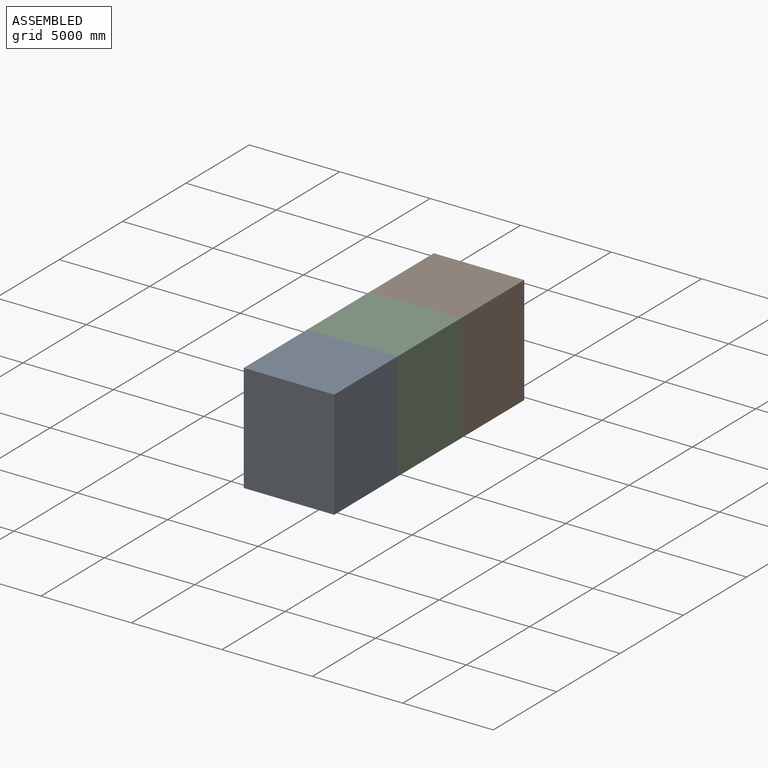
[diagram: assembled view]
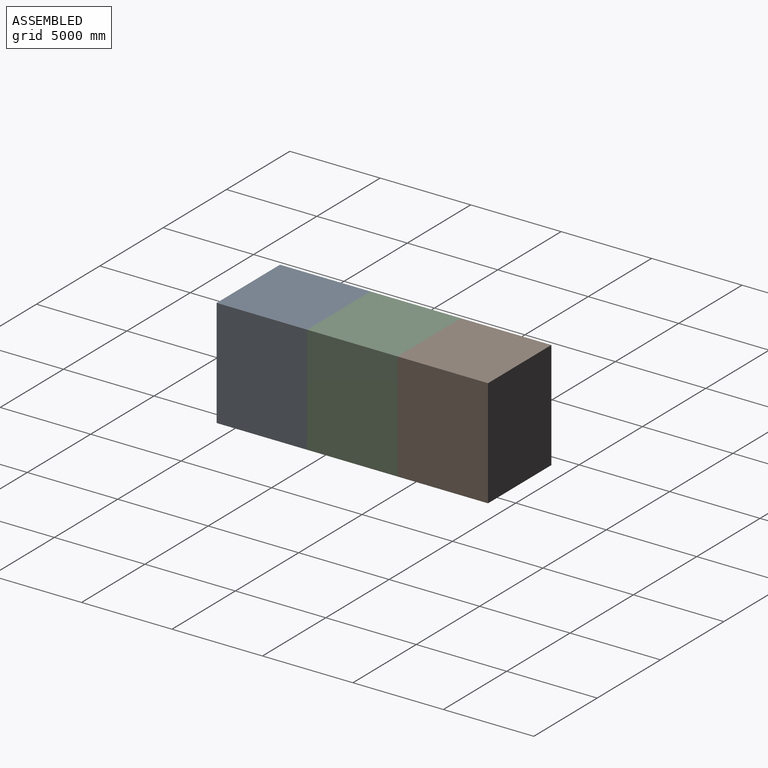
[diagram: assembled view, second angle]
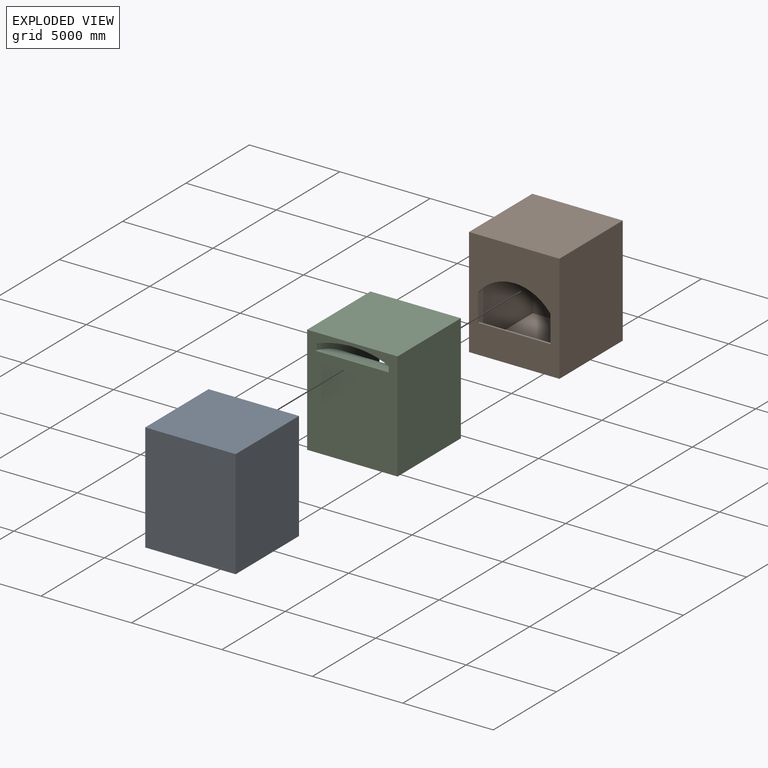
[diagram: exploded view]
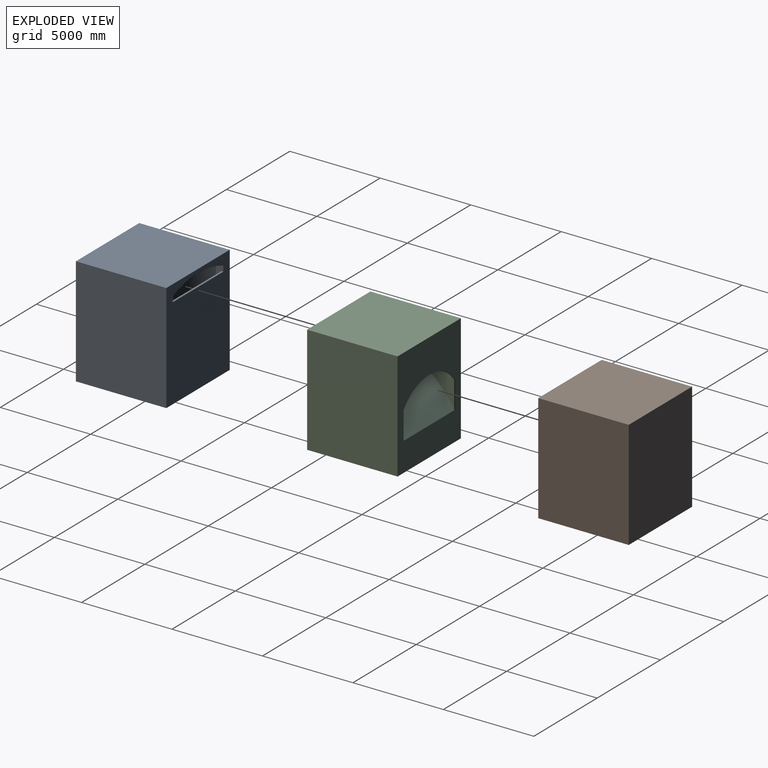
[diagram: exploded view, second angle]
ASSEMBLY  parts=3 mates=2
PART A: 16 faces, bbox 5000x5000x6000 mm
  f0: plane 5000x5000mm, normal (0,0,-1), area 25000000mm2, adj f1,f3,f4,f5
  f1: plane 6000x5000mm, normal (0,1,0), area 30000000mm2, adj f0,f2,f4,f5
  f2: plane 5000x5000mm, normal (0,0,1), area 25000000mm2, adj f1,f3,f4,f5
  f3: plane 6000x5000mm, normal (0,-1,0), area 30000000mm2, adj f0,f2,f4,f5
  f4: plane 6000x5000mm, normal (1,0,0), area 30000000mm2, adj f0,f1,f2,f3
  f5: plane 6000x5000mm, normal (-1,0,0), area 27724848.1mm2, adj f0,f1,f2,f3,f6,f7,f8,f9
  f6: plane 4000x100mm, normal (0,0,1), area 400000mm2, adj f5,f7,f9,f10
  f7: plane 300x100mm, normal (0,-1,0), area 30000mm2, adj f5,f6,f8,f10
  f8: cylinder r=5200mm len=4000mm, axis (-1,0,0), area 410582.8mm2, adj f5,f7,f9,f10
  f9: plane 300x100mm, normal (0,1,0), area 30000mm2, adj f5,f6,f8,f10
  f10: plane 5800x4800mm, normal (1,0,0), area 25564848.1mm2, adj f6,f7,f8,f9,f11,f12,f13,f14
  f11: plane 4800x4800mm, normal (0,0,1), area 23040000mm2, adj f10,f12,f14,f15
  f12: plane 5800x4800mm, normal (0,-1,0), area 27840000mm2, adj f10,f11,f13,f15
  f13: plane 4800x4800mm, normal (0,0,-1), area 23040000mm2, adj f10,f12,f14,f15
  f14: plane 5800x4800mm, normal (0,1,0), area 27840000mm2, adj f10,f11,f13,f15
  f15: plane 5800x4800mm, normal (-1,0,0), area 27840000mm2, adj f11,f12,f13,f14
PART B: 16 faces, bbox 5000x5000x6000 mm
  f0: plane 6000x5000mm, normal (0,1,0), area 21204404.9mm2, adj f1,f2,f3,f4,f6,f7,f8,f9
  f1: plane 5000x5000mm, normal (0,0,-1), area 25000000mm2, adj f0,f2,f4,f5
  f2: plane 6000x5000mm, normal (1,0,0), area 30000000mm2, adj f0,f1,f3,f5
  f3: plane 5000x5000mm, normal (0,0,1), area 25000000mm2, adj f0,f2,f4,f5
  f4: plane 6000x5000mm, normal (-1,0,0), area 30000000mm2, adj f0,f1,f3,f5
  f5: plane 6000x5000mm, normal (0,-1,0), area 30000000mm2, adj f1,f2,f3,f4
  f6: plane 1500x100mm, normal (1,0,0), area 150000mm2, adj f0,f7,f9,f10
  f7: plane 4000x100mm, normal (0,0,1), area 400000mm2, adj f0,f6,f8,f10
  f8: plane 1500x100mm, normal (-1,0,0), area 150000mm2, adj f0,f7,f9,f10
  f9: cylinder r=2500mm len=4000mm, axis (0,1,0), area 463647.6mm2, adj f0,f6,f8,f10
  f10: plane 5800x4800mm, normal (0,-1,0), area 19044404.9mm2, adj f6,f7,f8,f9,f11,f12,f13,f14
  f11: plane 4800x4800mm, normal (0,0,1), area 23040000mm2, adj f10,f12,f14,f15
  f12: plane 5800x4800mm, normal (-1,0,0), area 27840000mm2, adj f10,f11,f13,f15
  f13: plane 4800x4800mm, normal (0,0,-1), area 23040000mm2, adj f10,f12,f14,f15
  f14: plane 5800x4800mm, normal (1,0,0), area 27840000mm2, adj f10,f11,f13,f15
  f15: plane 5800x4800mm, normal (0,1,0), area 27840000mm2, adj f11,f12,f13,f14
PART C: 30 faces, bbox 5000x5138.5x6000 mm
  f0: plane 6000x5000mm, normal (0,-1,0), area 27484108mm2, adj f2,f3,f4,f5,f15,f20,f21,f24
  f1: plane 6000x5000mm, normal (0,1,0), area 20894415.5mm2, adj f2,f3,f4,f5,f10,f11,f12,f13
  f2: plane 6000x5000mm, normal (-1,0,0), area 30000000mm2, adj f0,f1,f4,f5
  f3: plane 6000x5000mm, normal (1,0,0), area 30000000mm2, adj f0,f1,f4,f5
  f4: plane 5000x5000mm, normal (0,0,1), area 25000000mm2, adj f0,f1,f2,f3
  f5: plane 5000x5000mm, normal (0,0,-1), area 25000000mm2, adj f0,f1,f2,f3
  f6: plane 4950.28x3702.44mm, normal (1,0,0), area 3434740.9mm2, adj f13,f14,f23,f24
  f7: bspline ~5000x4000mm, area 22455269.8mm2, adj f18,f23,f26,f29
  f8: plane 4950.28x3702.44mm, normal (-1,0,0), area 3434740.9mm2, adj f16,f17,f25,f26
  f9: bspline ~5000x4000mm, area 24486633.4mm2, adj f10,f14,f15,f16
  f10: cylinder r=25mm len=3950mm, axis (-1,0,0), area 62135.8mm2, adj f1,f9,f11,f12
  f11: bspline ~89.5x52.83mm, area 2451.7mm2, adj f1,f10,f13,f14
  f12: bspline ~87.35x54.1mm, area 2451.8mm2, adj f1,f10,f16,f17
  f13: cylinder r=25mm len=1430.73mm, axis (0,0,-1), area 56184.6mm2, adj f1,f6,f11,f19
  f14: bspline ~5054.12x3568.22mm, area 242612.9mm2, adj f6,f9,f11,f20
  f15: cylinder r=25mm len=3950mm, axis (-1,0,0), area 182897.4mm2, adj f0,f9,f20,f21
  f16: bspline ~5054.12x3568.22mm, area 242612.9mm2, adj f8,f9,f12,f21
  f17: cylinder r=25mm len=1430.73mm, axis (0,0,-1), area 56184.6mm2, adj f1,f8,f12,f22
  f18: bspline ~4030.15x1023.14mm, area 242077.4mm2, adj f1,f7,f19,f22
  f19: bspline ~58.86x49.49mm, area 1709.2mm2, adj f1,f13,f18,f23
  f20: bspline ~57.95x55.41mm, area 2344.9mm2, adj f0,f14,f15,f24
  f21: bspline ~58.19x54.63mm, area 2345mm2, adj f0,f15,f16,f25
  f22: bspline ~56x47.37mm, area 1709.1mm2, adj f1,f17,f18,f26
  f23: bspline ~5091.3x2327.65mm, area 137660.3mm2, adj f6,f7,f19,f27
  f24: cylinder r=25mm len=260.2mm, axis (0,0,1), area 10218.1mm2, adj f0,f6,f20,f27
  f25: cylinder r=25mm len=260.2mm, axis (0,0,1), area 10218.1mm2, adj f0,f8,f21,f28
  f26: bspline ~5091.3x2327.65mm, area 137660.3mm2, adj f7,f8,f22,f28
  f27: bspline ~53.36x41.42mm, area 1542mm2, adj f0,f23,f24,f29
  f28: bspline ~54.2x43.14mm, area 1542mm2, adj f0,f25,f26,f29
  f29: bspline ~4000.62x423.42mm, area 148780.3mm2, adj f0,f7,f27,f28
PLACE A rot(axis=(0,0,-1),90deg) t=(3818.48,-698.54,445.82)mm
PLACE B rot(axis=(0,0,1),180deg) t=(3568.48,4301.46,445.82)mm
PLACE C t=(1193.48,-698.54,1441.27)mm
MATE fastened B.f0 <-> C.f1  axis (0,1,0) through (3693.48,4301.46,-840.75)mm
MATE fastened A.f5 <-> C.f0  axis (0,-1,0) through (3693.48,-698.54,1838.02)mm
